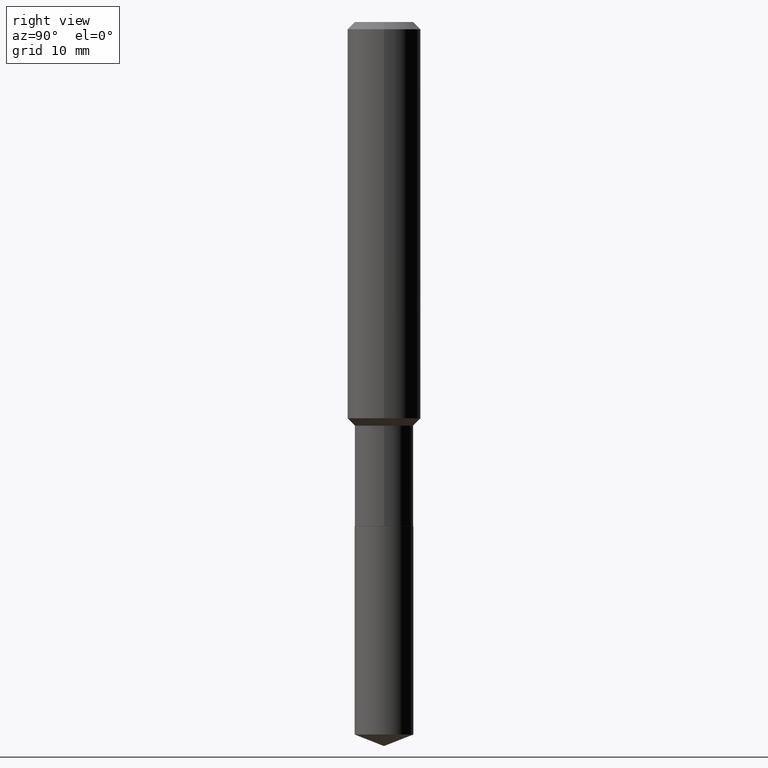
[diagram: clean part render]
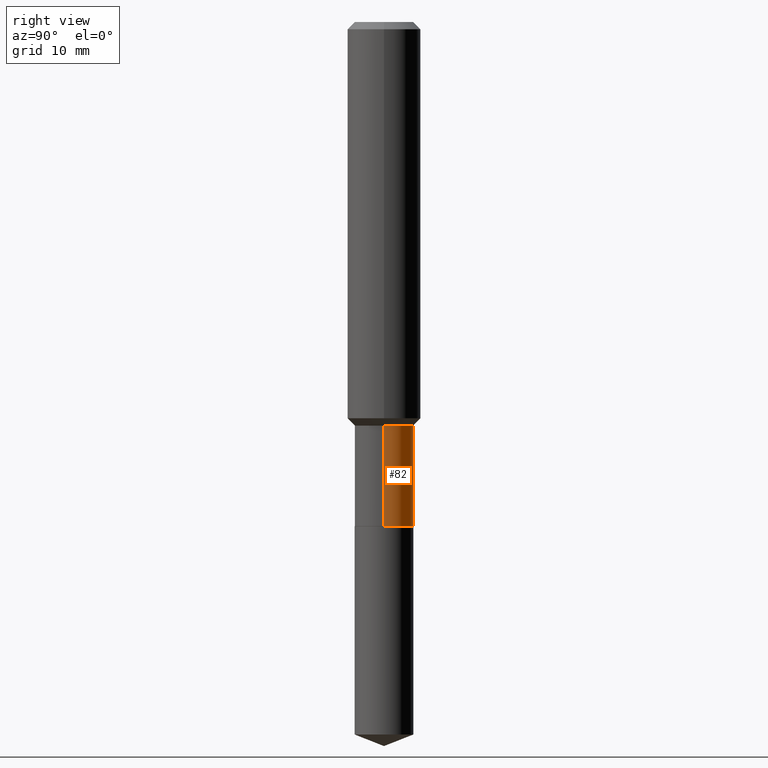
[diagram: same view with one face highlighted and labeled with its STEP entity id]
A machine part, right view. The second image highlights one B-rep face of the part: STEP entity #82.
In plain terms, the highlighted cylindrical surface (edge-blend (fillet) strip) has radius 3.2004 mm, axis along (-0, 0, 1).
Its self-contained STEP definition (entity closure, byte-faithful):
#4 = DIRECTION ( 'NONE',  ( 1.000000000000000000, -6.982962677686265922E-15, 4.876176775795935793E-29 ) ) ;
#29 = AXIS2_PLACEMENT_3D ( 'NONE', #342, #91, #4 ) ;
#31 = CARTESIAN_POINT ( 'NONE',  ( -0.1260000000000000009, -5.910660726749217363E-15, -2.164800000000000058 ) ) ;
#42 = FACE_OUTER_BOUND ( 'NONE', #328, .T. ) ;
#49 = AXIS2_PLACEMENT_3D ( 'NONE', #346, #161, #457 ) ;
#52 = LINE ( 'NONE', #462, #305 ) ;
#82 = ADVANCED_FACE ( 'NONE', ( #42 ), #192, .T. ) ;
#91 = DIRECTION ( 'NONE',  ( -2.445468806185136597E-29, 3.491481338843145583E-15, 1.000000000000000000 ) ) ;
#140 = DIRECTION ( 'NONE',  ( -2.445468806185136597E-29, 3.491481338843145583E-15, 1.000000000000000000 ) ) ;
#141 = VERTEX_POINT ( 'NONE', #194 ) ;
#147 = EDGE_CURVE ( 'NONE', #381, #141, #52, .T. ) ;
#161 = DIRECTION ( 'NONE',  ( -2.445468806185136597E-29, 3.491481338843145583E-15, 1.000000000000000000 ) ) ;
#171 = VERTEX_POINT ( 'NONE', #421 ) ;
#186 = CIRCLE ( 'NONE', #300, 0.1260000000000000009 ) ;
#192 = CYLINDRICAL_SURFACE ( 'NONE', #29, 0.1259999999999999731 ) ;
#194 = CARTESIAN_POINT ( 'NONE',  ( -0.1259999999999999454, -5.910660726749217363E-15, -1.733800000000000008 ) ) ;
#195 = VERTEX_POINT ( 'NONE', #308 ) ;
#197 = VECTOR ( 'NONE', #354, 39.37007874015748143 ) ;
#201 = LINE ( 'NONE', #392, #197 ) ;
#202 = ORIENTED_EDGE ( 'NONE', *, *, #213, .F. ) ;
#213 = EDGE_CURVE ( 'NONE', #171, #195, #201, .T. ) ;
#218 = EDGE_CURVE ( 'NONE', #195, #141, #288, .T. ) ;
#232 = ORIENTED_EDGE ( 'NONE', *, *, #147, .T. ) ;
#243 = DIRECTION ( 'NONE',  ( -2.445468806185136877E-29, 3.491481338843145188E-15, 1.000000000000000000 ) ) ;
#250 = DIRECTION ( 'NONE',  ( 1.000000000000000000, -6.982962677686262766E-15, 0.000000000000000000 ) ) ;
#288 = CIRCLE ( 'NONE', #49, 0.1259999999999999454 ) ;
#300 = AXIS2_PLACEMENT_3D ( 'NONE', #410, #140, #250 ) ;
#304 = EDGE_CURVE ( 'NONE', #171, #381, #186, .T. ) ;
#305 = VECTOR ( 'NONE', #243, 39.37007874015748143 ) ;
#308 = CARTESIAN_POINT ( 'NONE',  ( 0.1259999999999999454, -6.933383642674714153E-15, -1.733800000000000008 ) ) ;
#328 = EDGE_LOOP ( 'NONE', ( #347, #232, #432, #202 ) ) ;
#342 = CARTESIAN_POINT ( 'NONE',  ( 0.000000000000000000, 0.000000000000000000, 0.000000000000000000 ) ) ;
#346 = CARTESIAN_POINT ( 'NONE',  ( 4.239953816163789675E-29, -6.053530345286245589E-15, -1.733800000000000008 ) ) ;
#347 = ORIENTED_EDGE ( 'NONE', *, *, #304, .T. ) ;
#354 = DIRECTION ( 'NONE',  ( -2.445468806185136877E-29, 3.491481338843145188E-15, 1.000000000000000000 ) ) ;
#381 = VERTEX_POINT ( 'NONE', #31 ) ;
#392 = CARTESIAN_POINT ( 'NONE',  ( 0.1259999999999999731, -8.798532973884693531E-16, 6.143982737502877445E-30 ) ) ;
#410 = CARTESIAN_POINT ( 'NONE',  ( 5.293950871629583880E-29, -7.558358802327641618E-15, -2.164800000000000058 ) ) ;
#421 = CARTESIAN_POINT ( 'NONE',  ( 0.1260000000000000009, -8.438212099716110972E-15, -2.164800000000000058 ) ) ;
#432 = ORIENTED_EDGE ( 'NONE', *, *, #218, .F. ) ;
#457 = DIRECTION ( 'NONE',  ( 1.000000000000000000, -6.982962677686265922E-15, 0.000000000000000000 ) ) ;
#462 = CARTESIAN_POINT ( 'NONE',  ( -0.1259999999999999731, 8.952838470577260433E-16, -6.197858213721179906E-30 ) ) ;